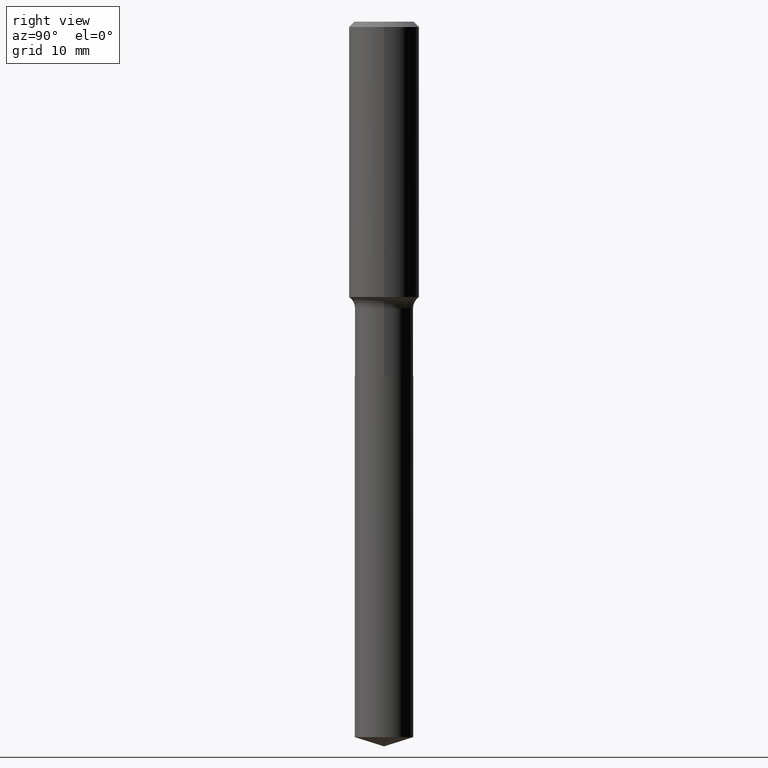
[diagram: clean part render]
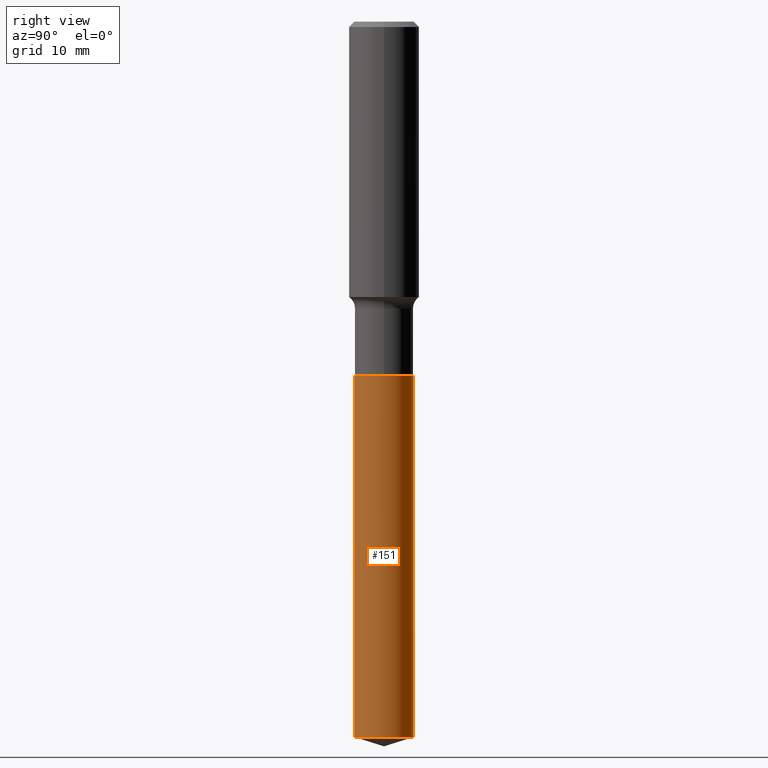
[diagram: same view with one face highlighted and labeled with its STEP entity id]
A machine part, right view. The second image highlights one B-rep face of the part: STEP entity #151.
In plain terms, the highlighted cylindrical surface (edge-blend (fillet) strip) has radius 4.1504 mm, axis along (-0, 0, 1).
Its self-contained STEP definition (entity closure, byte-faithful):
#10 = VERTEX_POINT ( 'NONE', #223 ) ;
#37 = EDGE_CURVE ( 'NONE', #10, #109, #136, .T. ) ;
#42 = AXIS2_PLACEMENT_3D ( 'NONE', #488, #152, #242 ) ;
#63 = ORIENTED_EDGE ( 'NONE', *, *, #172, .F. ) ;
#77 = CARTESIAN_POINT ( 'NONE',  ( 9.790798433578370854E-29, -1.397818490061600352E-14, -4.003580177897174686 ) ) ;
#83 = CYLINDRICAL_SURFACE ( 'NONE', #423, 0.1633999999999999897 ) ;
#89 = CARTESIAN_POINT ( 'NONE',  ( -1.141016101533887238E-15, -0.1634000000000069008, -1.980299999999999283 ) ) ;
#95 = ORIENTED_EDGE ( 'NONE', *, *, #37, .F. ) ;
#109 = VERTEX_POINT ( 'NONE', #89 ) ;
#117 = DIRECTION ( 'NONE',  ( -2.445551837428918341E-29, 3.491362433376205116E-15, 1.000000000000000000 ) ) ;
#129 = EDGE_CURVE ( 'NONE', #10, #408, #222, .T. ) ;
#136 = LINE ( 'NONE', #167, #271 ) ;
#149 = CARTESIAN_POINT ( 'NONE',  ( 1.161026830232051948E-15, 0.1633999999999931063, -1.980300000000000393 ) ) ;
#151 = ADVANCED_FACE ( 'NONE', ( #243 ), #83, .T. ) ;
#152 = DIRECTION ( 'NONE',  ( -2.445551837428918341E-29, 3.491362433376205116E-15, 1.000000000000000000 ) ) ;
#162 = DIRECTION ( 'NONE',  ( -2.445551837428918341E-29, 3.491362433376205116E-15, 1.000000000000000000 ) ) ;
#167 = CARTESIAN_POINT ( 'NONE',  ( -1.141016101533887238E-15, -0.1634000000000069008, -1.980299999999999283 ) ) ;
#172 = EDGE_CURVE ( 'NONE', #109, #438, #333, .T. ) ;
#203 = EDGE_LOOP ( 'NONE', ( #260, #444, #63, #95 ) ) ;
#204 = DIRECTION ( 'NONE',  ( -6.982962677686265922E-15, -1.000000000000000000, 3.343755194203504699E-15 ) ) ;
#205 = DIRECTION ( 'NONE',  ( -2.445551837428918341E-29, 3.491362433376205116E-15, 1.000000000000000000 ) ) ;
#222 = CIRCLE ( 'NONE', #256, 0.1633999999999999897 ) ;
#223 = CARTESIAN_POINT ( 'NONE',  ( -1.141016101533837737E-15, -0.1634000000000139230, -4.003580177897174686 ) ) ;
#227 = LINE ( 'NONE', #149, #435 ) ;
#230 = DIRECTION ( 'NONE',  ( -2.445551837428918341E-29, 3.491362433376205116E-15, 1.000000000000000000 ) ) ;
#242 = DIRECTION ( 'NONE',  ( -6.982962677686265922E-15, -1.000000000000000000, 3.343755194203504699E-15 ) ) ;
#243 = FACE_OUTER_BOUND ( 'NONE', #203, .T. ) ;
#249 = DIRECTION ( 'NONE',  ( -6.982962677686265922E-15, -1.000000000000000000, 3.343755194203504699E-15 ) ) ;
#256 = AXIS2_PLACEMENT_3D ( 'NONE', #77, #162, #204 ) ;
#260 = ORIENTED_EDGE ( 'NONE', *, *, #129, .T. ) ;
#270 = EDGE_CURVE ( 'NONE', #408, #438, #227, .T. ) ;
#271 = VECTOR ( 'NONE', #205, 39.37007874015748143 ) ;
#274 = CARTESIAN_POINT ( 'NONE',  ( 1.161026830232101646E-15, 0.1633999999999931063, -1.980300000000000393 ) ) ;
#333 = CIRCLE ( 'NONE', #42, 0.1633999999999999897 ) ;
#381 = CARTESIAN_POINT ( 'NONE',  ( 4.842761876888425335E-29, -6.914180495311080769E-15, -1.980299999999999949 ) ) ;
#408 = VERTEX_POINT ( 'NONE', #418 ) ;
#418 = CARTESIAN_POINT ( 'NONE',  ( 1.161026830232101449E-15, 0.1633999999999860009, -4.003580177897175574 ) ) ;
#423 = AXIS2_PLACEMENT_3D ( 'NONE', #381, #117, #249 ) ;
#435 = VECTOR ( 'NONE', #230, 39.37007874015748143 ) ;
#438 = VERTEX_POINT ( 'NONE', #274 ) ;
#444 = ORIENTED_EDGE ( 'NONE', *, *, #270, .T. ) ;
#488 = CARTESIAN_POINT ( 'NONE',  ( 4.842761876888425335E-29, -6.914180495311080769E-15, -1.980299999999999949 ) ) ;